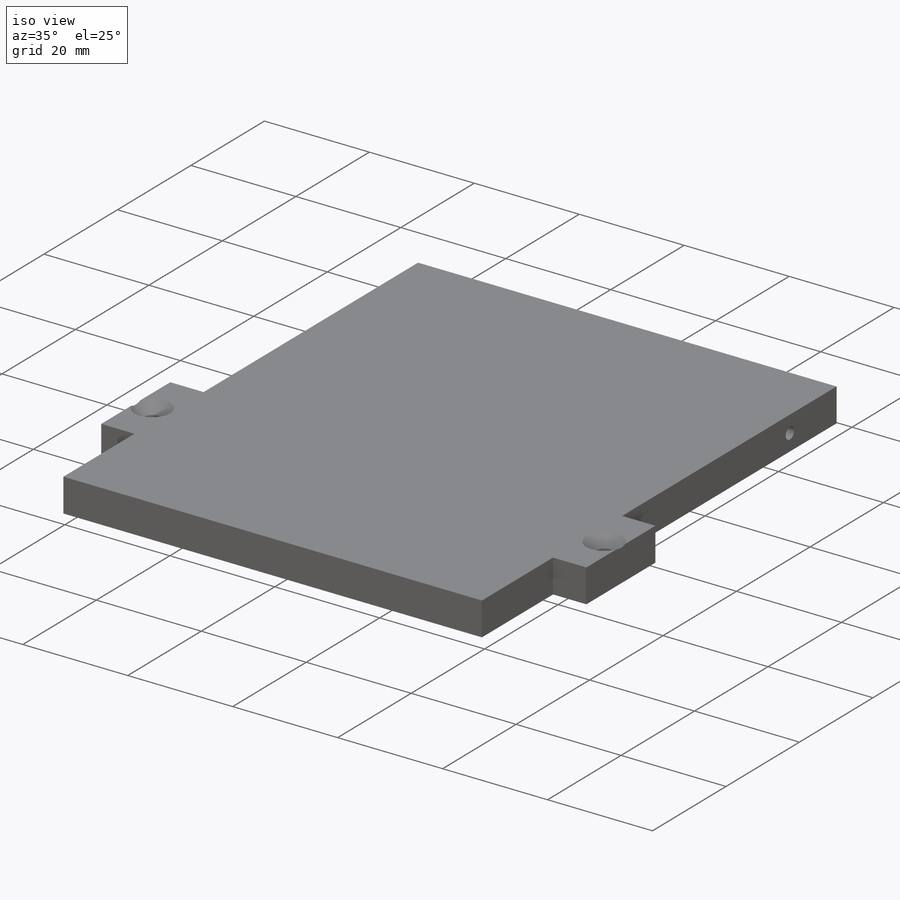
[diagram: iso view]
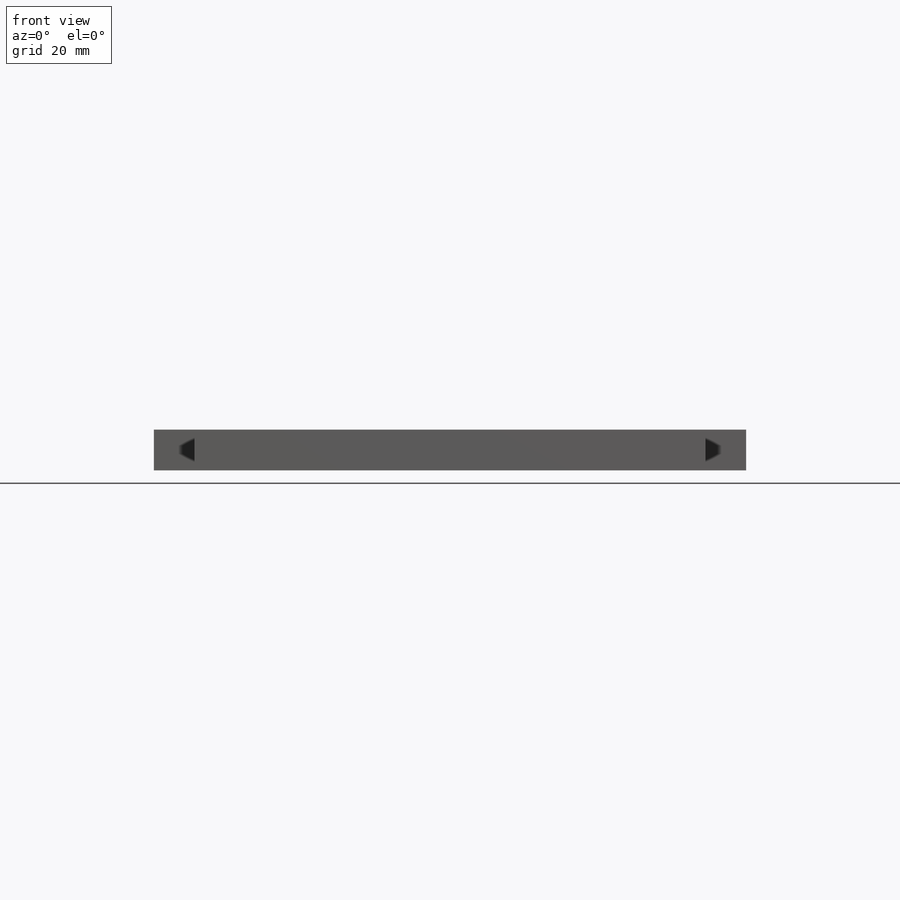
[diagram: front view]
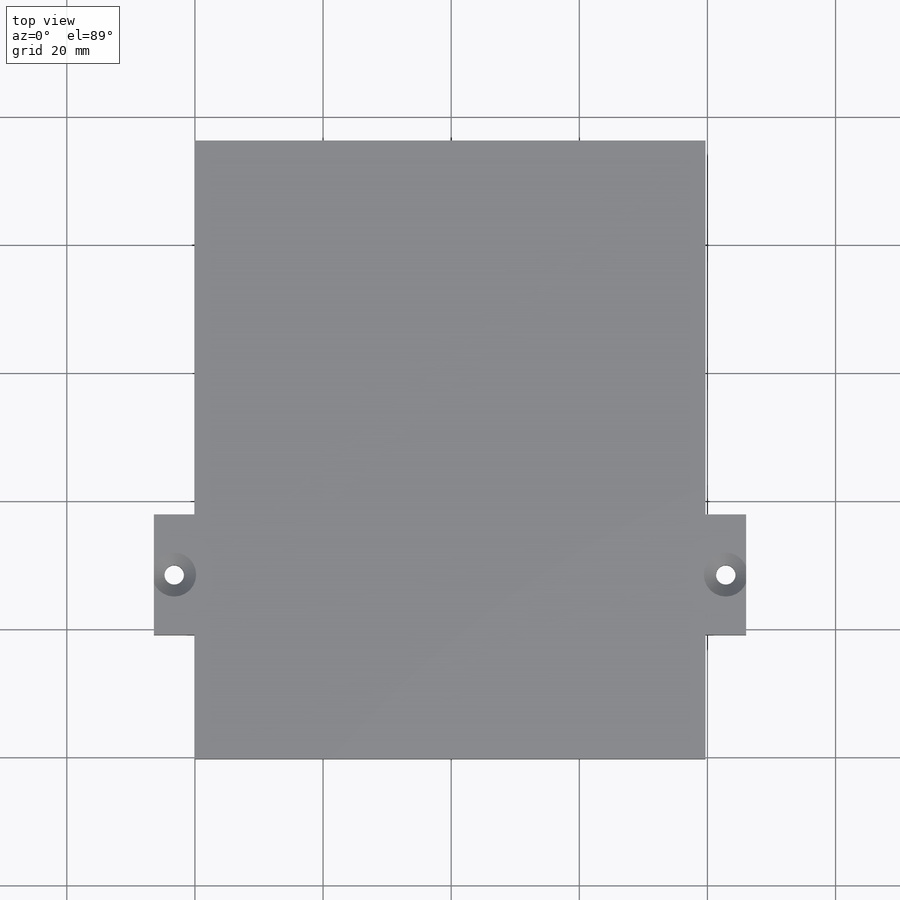
[diagram: top view]
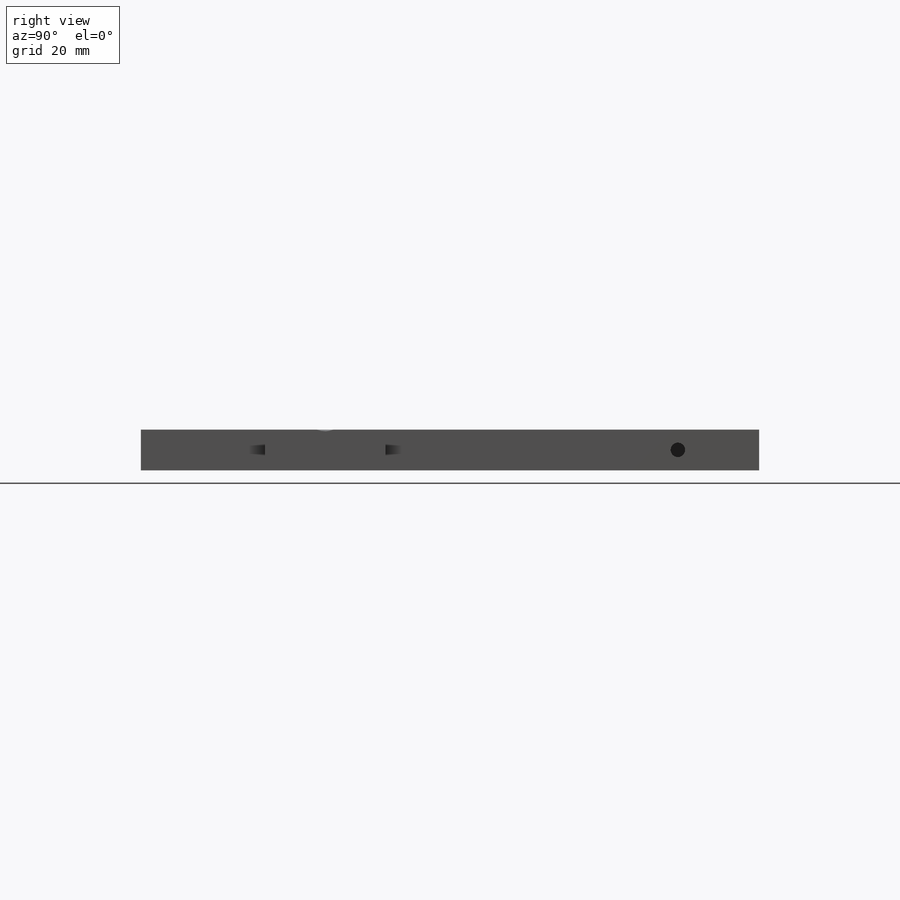
[diagram: right view]
SOLIDWORKS PART (.sldprt)
format: sldprt  version: not decoded by parser v0  size: 173,568 bytes
history: native  units: mm
features: sketch x2, material x1, extrude x1, chamfer x1, cut_extrude x1, mirror x1 (+11 scaffold rows collapsed)
feature tree (18):
  scaffold x11  (default folders/planes/origin — collapsed)
  material  "Material <not specified>"
  sketch  "Sketch1"  dims[c1.D4=3.048mm c1.D1=39.878mm c1.D2=18.796mm c1.D3=18.796mm c1.D5=6.35mm c1.D6=~19.987604mm c2.D6=~179.049924deg c3.D6=79.756mm c4.D6=~0.217682deg c5.D6=38.1508mm c5.D7=96.52mm]
  extrude  "Boss-Extrude1"  Depth=6.35mm
  chamfer  "Chamfer1"  Distance=1.905mm Angle=45deg
  sketch  "Sketch2"  dims[D1=2.2606mm D2=12.7mm]
  cut_extrude  "Cut-Extrude1"  Depth=12.7mm
  mirror  "Mirror5"
decode coverage: 5 of 6 modeling features carry decoded parameters
note: ~ marks probable driven/reference dimensions
note: suppression state not decoded; provenance and decode notes live in map.json
